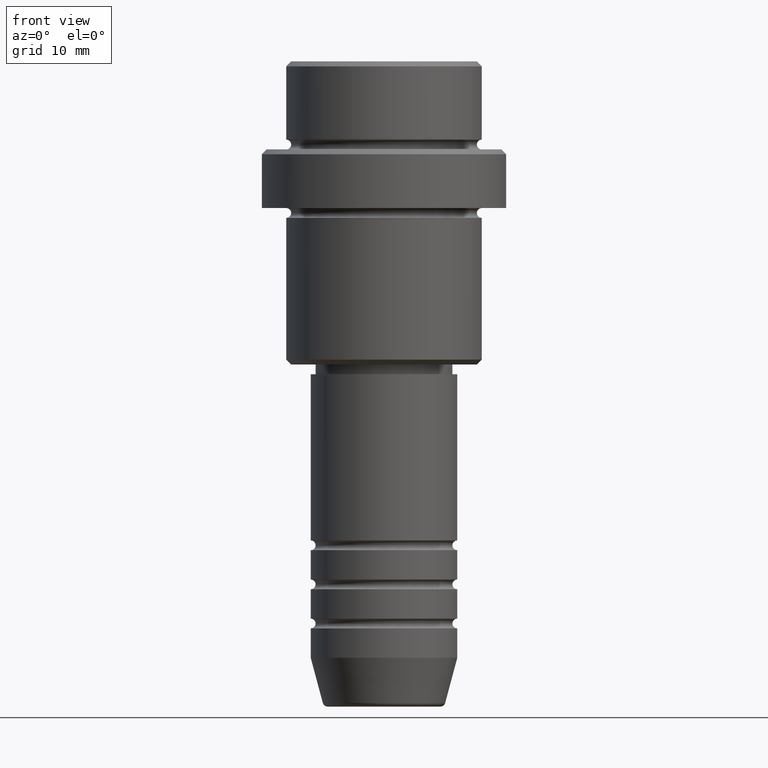
[diagram: clean part render]
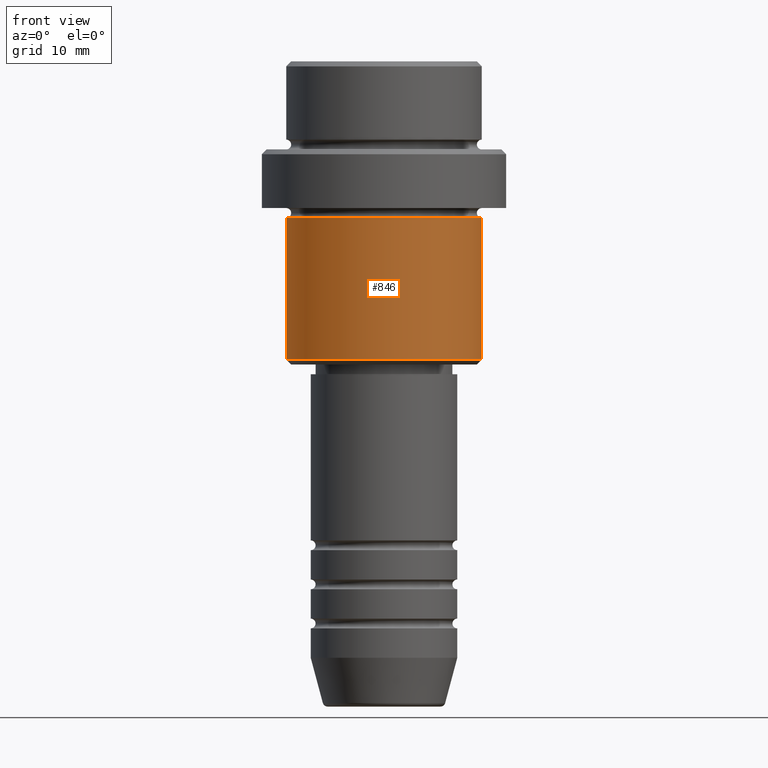
[diagram: same view with one face highlighted and labeled with its STEP entity id]
A machine part, front view. The second image highlights one B-rep face of the part: STEP entity #846.
In plain terms, the highlighted cylindrical surface (partial cylindrical patch) has radius 10 mm, axis along (-0, -0, 1).
Its self-contained STEP definition (entity closure, byte-faithful):
#82 = DIRECTION ( 'NONE',  ( 1.000000000000000000, 0.000000000000000000, 0.000000000000000000 ) ) ;
#112 = VECTOR ( 'NONE', #1252, 1000.000000000000000 ) ;
#128 = CARTESIAN_POINT ( 'NONE',  ( 0.000000000000000000, 0.000000000000000000, -30.49999999999998579 ) ) ;
#137 = CIRCLE ( 'NONE', #290, 10.00000000000000000 ) ;
#158 = CYLINDRICAL_SURFACE ( 'NONE', #517, 10.00000000000000000 ) ;
#163 = AXIS2_PLACEMENT_3D ( 'NONE', #480, #823, #166 ) ;
#166 = DIRECTION ( 'NONE',  ( 1.000000000000000000, 0.000000000000000000, 0.000000000000000000 ) ) ;
#234 = EDGE_CURVE ( 'NONE', #782, #1038, #137, .T. ) ;
#275 = EDGE_CURVE ( 'NONE', #1038, #997, #1394, .T. ) ;
#290 = AXIS2_PLACEMENT_3D ( 'NONE', #128, #1392, #794 ) ;
#315 = CARTESIAN_POINT ( 'NONE',  ( 10.00000000000000000, 0.000000000000000000, 0.000000000000000000 ) ) ;
#471 = CARTESIAN_POINT ( 'NONE',  ( 10.00000000000000000, 0.000000000000000000, -30.49999999999998579 ) ) ;
#480 = CARTESIAN_POINT ( 'NONE',  ( 0.000000000000000000, 0.000000000000000000, -16.00000000000000000 ) ) ;
#486 = VERTEX_POINT ( 'NONE', #970 ) ;
#517 = AXIS2_PLACEMENT_3D ( 'NONE', #1261, #593, #82 ) ;
#583 = CARTESIAN_POINT ( 'NONE',  ( -10.00000000000000000, 1.224646799147353256E-15, 0.000000000000000000 ) ) ;
#593 = DIRECTION ( 'NONE',  ( -0.000000000000000000, -0.000000000000000000, 1.000000000000000000 ) ) ;
#624 = CARTESIAN_POINT ( 'NONE',  ( 10.00000000000000000, 0.000000000000000000, -16.00000000000000000 ) ) ;
#630 = EDGE_CURVE ( 'NONE', #782, #486, #1026, .T. ) ;
#684 = DIRECTION ( 'NONE',  ( -0.000000000000000000, -0.000000000000000000, 1.000000000000000000 ) ) ;
#782 = VERTEX_POINT ( 'NONE', #824 ) ;
#790 = ORIENTED_EDGE ( 'NONE', *, *, #234, .T. ) ;
#794 = DIRECTION ( 'NONE',  ( -1.000000000000000000, 0.000000000000000000, 0.000000000000000000 ) ) ;
#823 = DIRECTION ( 'NONE',  ( -0.000000000000000000, -0.000000000000000000, 1.000000000000000000 ) ) ;
#824 = CARTESIAN_POINT ( 'NONE',  ( -10.00000000000000000, 1.224646799147353256E-15, -30.49999999999998579 ) ) ;
#846 = ADVANCED_FACE ( 'NONE', ( #1166 ), #158, .T. ) ;
#970 = CARTESIAN_POINT ( 'NONE',  ( -10.00000000000000000, 1.224646799147353256E-15, -16.00000000000000000 ) ) ;
#983 = ORIENTED_EDGE ( 'NONE', *, *, #275, .T. ) ;
#997 = VERTEX_POINT ( 'NONE', #624 ) ;
#1026 = LINE ( 'NONE', #583, #112 ) ;
#1038 = VERTEX_POINT ( 'NONE', #471 ) ;
#1116 = CIRCLE ( 'NONE', #163, 10.00000000000000000 ) ;
#1152 = ORIENTED_EDGE ( 'NONE', *, *, #630, .F. ) ;
#1166 = FACE_OUTER_BOUND ( 'NONE', #1239, .T. ) ;
#1191 = EDGE_CURVE ( 'NONE', #486, #997, #1116, .T. ) ;
#1218 = VECTOR ( 'NONE', #684, 1000.000000000000000 ) ;
#1239 = EDGE_LOOP ( 'NONE', ( #1152, #790, #983, #1292 ) ) ;
#1252 = DIRECTION ( 'NONE',  ( -0.000000000000000000, -0.000000000000000000, 1.000000000000000000 ) ) ;
#1261 = CARTESIAN_POINT ( 'NONE',  ( 0.000000000000000000, 0.000000000000000000, 0.000000000000000000 ) ) ;
#1292 = ORIENTED_EDGE ( 'NONE', *, *, #1191, .F. ) ;
#1392 = DIRECTION ( 'NONE',  ( -0.000000000000000000, -0.000000000000000000, 1.000000000000000000 ) ) ;
#1394 = LINE ( 'NONE', #315, #1218 ) ;